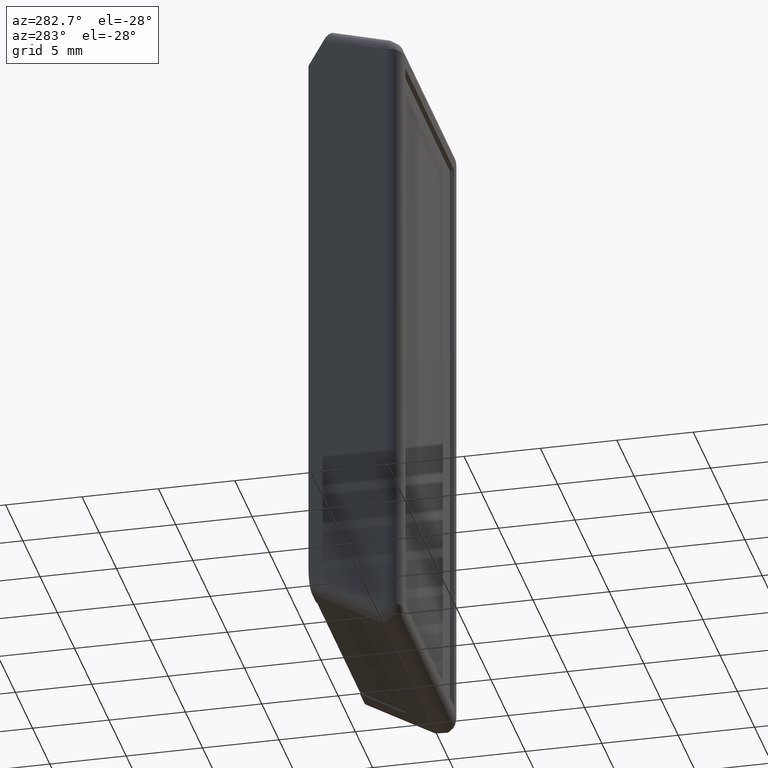
[diagram: clean part render]
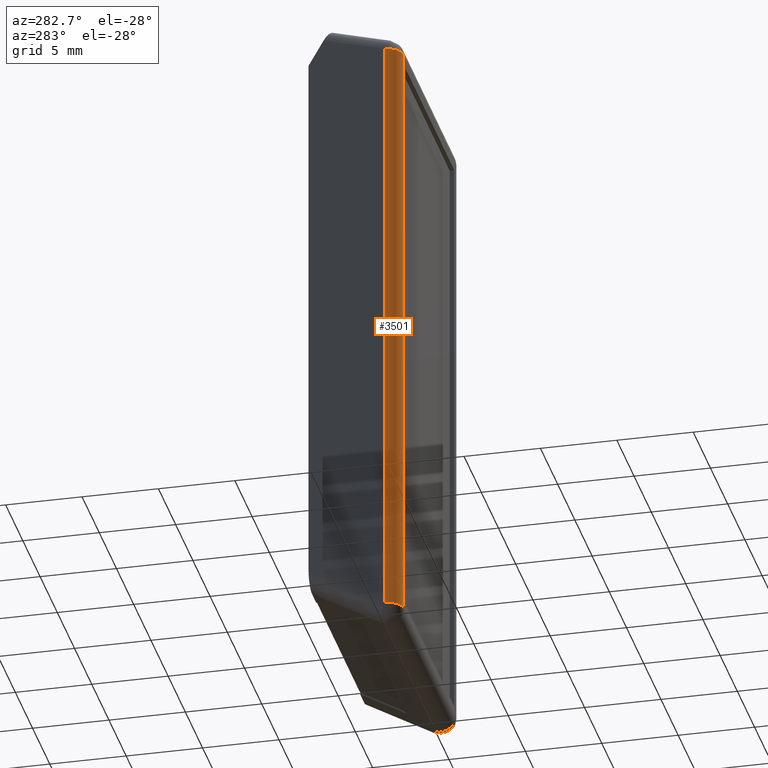
[diagram: same view with one face highlighted and labeled with its STEP entity id]
A machine part, auxiliary view. The second image highlights one B-rep face of the part: STEP entity #3501.
In plain terms, the highlighted face is a freeform B-spline surface patch.
Its self-contained STEP definition (entity closure, byte-faithful):
#3329=CARTESIAN_POINT('',(-8.600000000000000,-5.0,1.000025403877686));
#3330=VERTEX_POINT('',#3329);
#3376=CARTESIAN_POINT('',(-7.600000000000000,-6.0,1.000025403877686));
#3377=VERTEX_POINT('',#3376);
#3393=CARTESIAN_POINT('',(-7.600000000000000,-6.0,1.000025403877686));
#3394=CARTESIAN_POINT('',(-8.600000000000000,-6.0,1.000025403877686));
#3395=CARTESIAN_POINT('',(-8.600000000000000,-5.0,1.000025403877686));
#3403=(BOUNDED_CURVE()B_SPLINE_CURVE(2,(#3393,#3394,#3395),.UNSPECIFIED.,.F.,.U.)CURVE()GEOMETRIC_REPRESENTATION_ITEM()QUASI_UNIFORM_CURVE()RATIONAL_B_SPLINE_CURVE((1.0,0.707106781186548,1.0))REPRESENTATION_ITEM(''));
#3404=EDGE_CURVE('',#3377,#3330,#3403,.T.);
#3457=CARTESIAN_POINT('',(-7.591273464501627,-5.999961923064171,-0.000645328548812));
#3458=CARTESIAN_POINT('',(-7.591273464501627,-5.999961923064171,42.052542201674719));
#3459=CARTESIAN_POINT('',(-8.663601342011752,-6.009319986679547,-0.000645328548811));
#3460=CARTESIAN_POINT('',(-8.663601342011752,-6.009319986679547,42.052542201674711));
#3461=CARTESIAN_POINT('',(-8.598134798421867,-4.938951460465143,-0.000645328548812));
#3462=CARTESIAN_POINT('',(-8.598134798421867,-4.938951460465143,42.052542201674719));
#3470=(BOUNDED_SURFACE()B_SPLINE_SURFACE(1,2,((#3457,#3459,#3461),(#3458,#3460,#3462)),.UNSPECIFIED.,.F.,.F.,.U.)B_SPLINE_SURFACE_WITH_KNOTS((2,2),(3,3),(0.0,42.053187530223532),(0.0,1.0),.UNSPECIFIED.)GEOMETRIC_REPRESENTATION_ITEM()RATIONAL_B_SPLINE_SURFACE(((1.0,0.681998360062499,1.0),(1.0,0.681998360062499,1.0)))REPRESENTATION_ITEM('')SURFACE());
#3471=CARTESIAN_POINT('',(-7.600000000000000,-6.0,41.026854700937548));
#3472=VERTEX_POINT('',#3471);
#3473=CARTESIAN_POINT('',(-8.600000000000000,-5.0,41.026854700937548));
#3474=VERTEX_POINT('',#3473);
#3475=CARTESIAN_POINT('',(-7.600000000000000,-6.0,41.026854700937548));
#3476=CARTESIAN_POINT('',(-8.600000000000000,-6.0,41.026854700937548));
#3477=CARTESIAN_POINT('',(-8.600000000000000,-5.0,41.026854700937548));
#3485=(BOUNDED_CURVE()B_SPLINE_CURVE(2,(#3475,#3476,#3477),.UNSPECIFIED.,.F.,.U.)CURVE()GEOMETRIC_REPRESENTATION_ITEM()QUASI_UNIFORM_CURVE()RATIONAL_B_SPLINE_CURVE((1.0,0.707106781186548,1.0))REPRESENTATION_ITEM(''));
#3486=EDGE_CURVE('',#3472,#3474,#3485,.T.);
#3487=ORIENTED_EDGE('',*,*,#3486,.T.);
#3488=CARTESIAN_POINT('',(-8.600000000000000,-5.0,1.000025403877686));
#3489=CARTESIAN_POINT('',(-8.600000000000000,-5.0,41.026854700937548));
#3490=QUASI_UNIFORM_CURVE('',1,(#3488,#3489),.UNSPECIFIED.,.F.,.U.);
#3491=EDGE_CURVE('',#3330,#3474,#3490,.T.);
#3492=ORIENTED_EDGE('',*,*,#3491,.F.);
#3493=ORIENTED_EDGE('',*,*,#3404,.F.);
#3494=CARTESIAN_POINT('',(-7.600000000000000,-6.0,41.026854700937548));
#3495=CARTESIAN_POINT('',(-7.600000000000000,-6.0,1.000025403877686));
#3496=QUASI_UNIFORM_CURVE('',1,(#3494,#3495),.UNSPECIFIED.,.F.,.U.);
#3497=EDGE_CURVE('',#3472,#3377,#3496,.T.);
#3498=ORIENTED_EDGE('',*,*,#3497,.F.);
#3499=EDGE_LOOP('',(#3487,#3492,#3493,#3498));
#3500=FACE_OUTER_BOUND('',#3499,.T.);
#3501=ADVANCED_FACE('',(#3500),#3470,.T.);